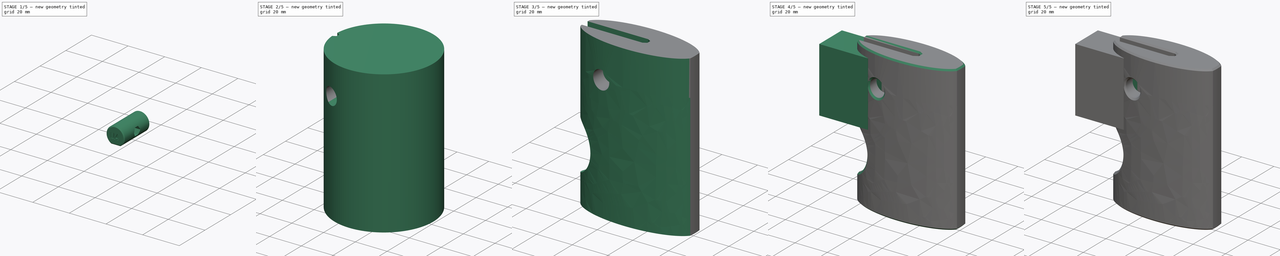
[diagram: build sequence overview — one tinted view per stage of 5, left to right]
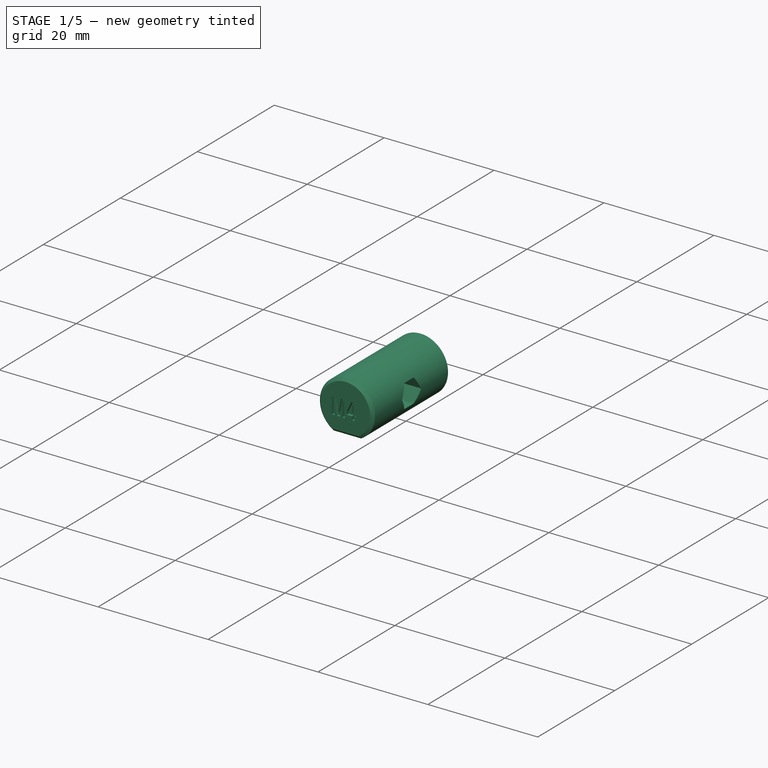
[diagram: stage 1 of 5 — iso view after this stage's code; geometry added in this stage tinted green]
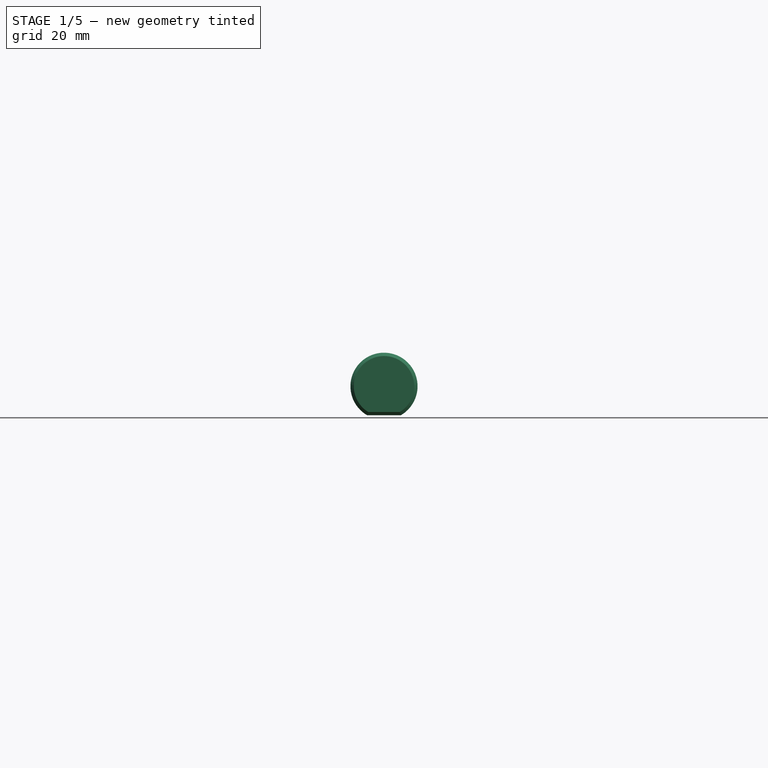
[diagram: stage 1 of 5 — front view after this stage's code; geometry added in this stage tinted green]
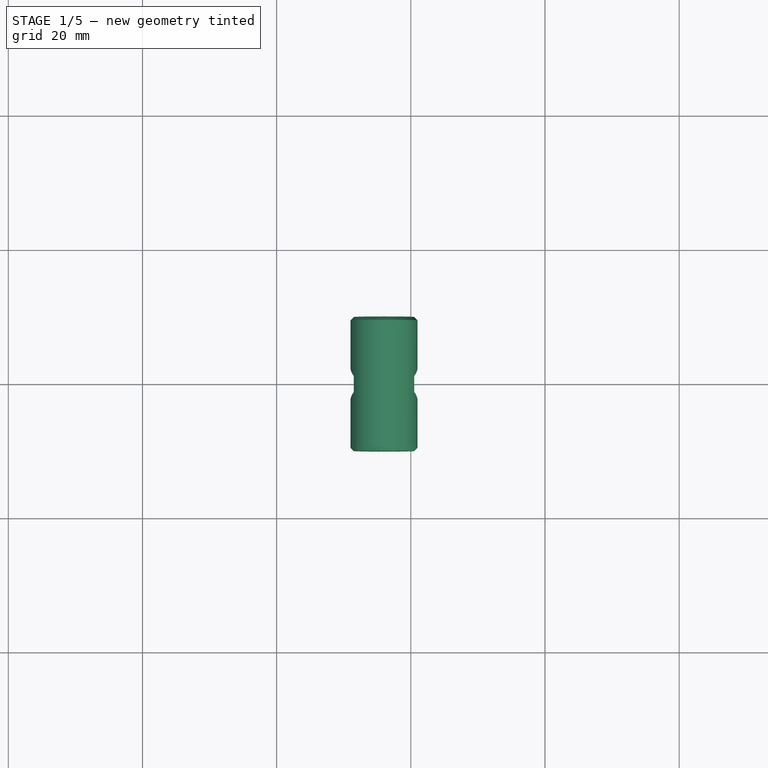
[diagram: stage 1 of 5 — top view after this stage's code; geometry added in this stage tinted green]
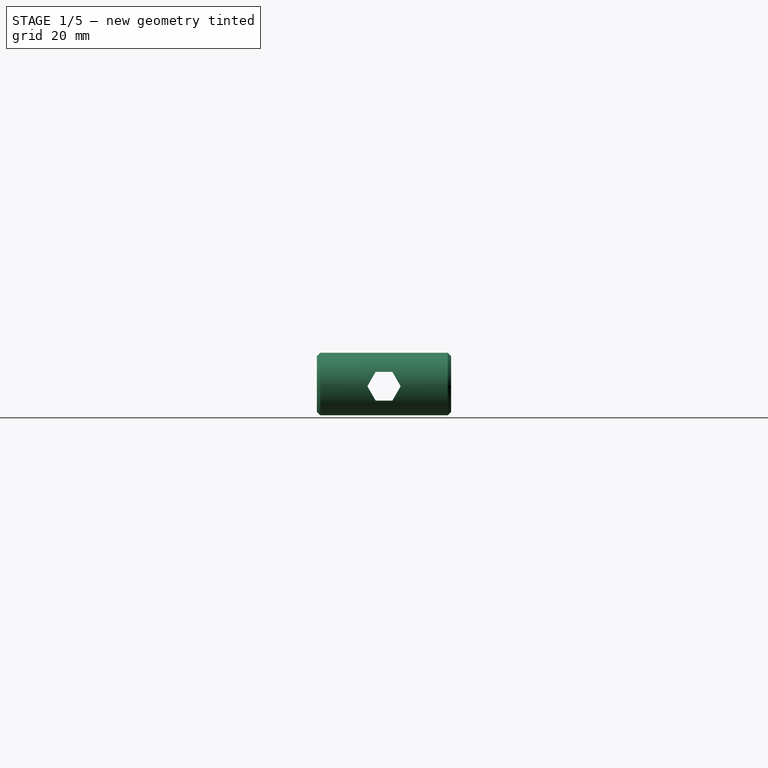
[diagram: stage 1 of 5 — right view after this stage's code; geometry added in this stage tinted green]
FCSTD DOCUMENT  (FreeCAD 1.2R20260113 (Git shallow))
Label: Key Axis protype
License: Creative Commons Attribution-NonCommercial-ShareAlike 4.0
LicenseURL: https://creativecommons.org/licenses/by-nc-sa/4.0/
objects: Sketcher::SketchObject×18, PartDesign::Pocket×10, App::Point×7, PartDesign::Pad×6, PartDesign::Chamfer×6, PartDesign::Body×5, PartDesign::SubShapeBinder×4, PartDesign::Mirrored×2, App::Part×2, PartDesign::SubtractivePipe×1, PartDesign::AdditivePipe×1, Part::Part2DObjectPython×1, Part::DatumPoint×1, Part::DatumLine×1, PartDesign::PolarPattern×1
note: 124 computed .brp shape members not serialized (recipe doc carries the construction recipe); baked Part::Feature solids carry a one-line shape summary decoded from their .brp

FEATURE [PartDesign::Body] Body001  label="Corps"
  AllowCompound = false
  Group = -> [Binder,Sketch004,Pad002,Sketch005,Pocket001]
  Origin = -> Origin002
  Tip = -> Pocket001
FEATURE [App::Part] Part  label="S1"
  Group = -> [Body,Body001]
  Origin = -> Origin004
FEATURE [App::Point] Origin005  label="Origine004"
  Role = Origin
FEATURE [App::Point] Origin007  label="Origine006"
  Role = Origin
FEATURE [App::Point] Origin009  label="Origine008"
  Role = Origin
FEATURE [Sketcher::SketchObject] Sketch006  label="Section001"
  ArcFitTolerance = 1e-06
  AttachmentOffset = pos=(0,0,28) rot=(0,0,1;0rad)
  AttachmentSupport = -> [Origin008]
  ExternalTypes = [0]
  FullyConstrained = true
  MakeInternals = false
  MapMode = 5
  Placement = pos=(28,0,0) rot=(0.57735,0.57735,0.57735;2.0944rad)
  sketch-geometry (7):
    g0: LineSegment StartX=2.3094 StartY=0 StartZ=0 EndX=1.1547 EndY=2 EndZ=0
    g1: LineSegment StartX=1.1547 StartY=2 StartZ=0 EndX=-1.1547 EndY=2 EndZ=0
    g2: LineSegment StartX=-1.1547 StartY=2 StartZ=0 EndX=-2.3094 EndY=0 EndZ=0
    g3: LineSegment StartX=-2.3094 StartY=0 StartZ=0 EndX=-1.1547 EndY=-2 EndZ=0
    g4: LineSegment StartX=-1.1547 StartY=-2 StartZ=0 EndX=1.1547 EndY=-2 EndZ=0
    g5: LineSegment StartX=1.1547 StartY=-2 StartZ=0 EndX=2.3094 EndY=0 EndZ=0
    g6: Circle [constr] CenterX=0 CenterY=0 CenterZ=0 NormalX=0 NormalY=0 NormalZ=1 AngleXU=0 Radius=2.3094
  constraints (16):
    c: Coincident(g0,g1)
    c: Coincident(g1,g2)
    c: Coincident(g2,g3)
    c: Coincident(g3,g4)
    c: Coincident(g4,g5)
    c: Coincident(g5,g0)
    c: Equal(g0, g1-g5) x5
    c: PointOnObject(g0,g6)
    c: PointOnObject(g1,g6)
    c: PointOnObject(g2,g6)
    c: PointOnObject(g3,g6)
    c: PointOnObject(g4,g6)
    c: PointOnObject(g5,g6)
    c: Coincident(g6,g-1)
    c: Horizontal(g4)
    c: Distance(g4,g0) = 4
FEATURE [Sketcher::SketchObject] Sketch007  label="Path001"
  ArcFitTolerance = 1e-06
  AttachmentSupport = -> [Origin008]
  ExternalGeometry = -> [Sketch006]
  ExternalTypes = [0]
  FullyConstrained = true
  MakeInternals = false
  MapMode = 5
  Placement = pos=(0,0,0) rot=(1,0,0;1.5708rad)
  sketch-geometry (3):
    g0: LineSegment StartX=28 StartY=-1 StartZ=0 EndX=4 EndY=-1 EndZ=0
    g1: ArcOfCircle CenterX=4 CenterY=-5 CenterZ=0 NormalX=0 NormalY=0 NormalZ=1 AngleXU=0 Radius=4 StartAngle=1.5708 EndAngle=3.14159
    g2: LineSegment StartX=0 StartY=-5 StartZ=0 EndX=0 EndY=-75 EndZ=0
  constraints (8):
    c: Tangent(g0,g1) = -1.5708
    c: Tangent(g1,g2) = -1.5708
    c: PointOnObject(g2,g-2)
    c: Horizontal(g0)
    c: Symmetric(g-3,g-3,g0)
    c: Vertical(g2)
    c: Radius(g1) = 4
    c: DistanceY(g2,g-1) = 75
FEATURE [PartDesign::AdditivePipe] AdditivePipe
  AuxiliaryCurvilinear = true
  AuxiliarySpineTangent = false
  Binormal = (0,0,0)
  Mode = 0
  Profile = -> Sketch006
  Refine = true
  Spine = -> Sketch007
  SpineTangent = false
  Suppressed = false
  Transformation = 0
  Transition = 0
FEATURE [PartDesign::Body] Body002  label="M4 Key"
  AllowCompound = false
  Group = -> [Sketch006,Sketch007,AdditivePipe]
  Origin = -> Origin008
  Tip = -> AdditivePipe
FEATURE [App::Point] Origin011  label="Origine010"
  Role = Origin
FEATURE [PartDesign::SubShapeBinder] Binder001
  BindCopyOnChange = 0
  BindMode = 0
  ClaimChildren = false
  Context = -> Part001 [Body003.Binder001.]
  Fuse = false
  MakeFace = true
  OffsetFill = false
  OffsetIntersection = false
  OffsetJoinType = 0
  OffsetOpenResult = false
  PartialLoad = false
  Refine = true
  Relative = true
  Support = -> [Body002]
  _Version = 2
FEATURE [Sketcher::SketchObject] Sketch008
  ArcFitTolerance = 1e-06
  AttachmentSupport = -> [Origin010]
  ExternalGeometry = -> [Binder001]
  ExternalTypes = [0,0]
  FullyConstrained = true
  MakeInternals = false
  MapMode = 5
  Placement = pos=(0,0,0) rot=(1,0,0;1.5708rad)
  sketch-geometry (3):
    g0: ArcOfCircle CenterX=16 CenterY=-1e-16 CenterZ=0 NormalX=0 NormalY=0 NormalZ=1 AngleXU=0 Radius=5 StartAngle=5.23599 EndAngle=10.472
    g1: LineSegment StartX=13.5 StartY=-4.33013 StartZ=0 EndX=18.5 EndY=-4.33013 EndZ=0
    g2: LineSegment [constr] StartX=18.5 StartY=-4.33013 StartZ=0 EndX=19.366 EndY=-3.83013 EndZ=0
  constraints (8):
    c: Coincident(g1,g0)
    c: Coincident(g1,g0)
    c: Horizontal(g1)
    c: Tangent(g2,g0) = -1.5708
    c: Distance(g2,g2) = 1
    c: Angle(g-1,g2) = 0.523599
    c: Symmetric(g-3,g-4,g0)
    c: Radius(g0) = 5
FEATURE [PartDesign::Pad] Pad003
  Direction = (0,-1,0)
  Length = 20
  Length2 = 10
  Profile = -> Sketch008
  ReferenceAxis = -> Sketch008 [N_Axis]
  Refine = true
  SideType = 2
  Suppressed = false
  Type = 0
  Type2 = 0
  UseCustomVector = true
FEATURE [Sketcher::SketchObject] Sketch009
  ArcFitTolerance = 1e-06
  AttachmentSupport = -> [Binder001]
  ExternalGeometry = -> [Binder001]
  ExternalTypes = [0,0]
  FullyConstrained = true
  MakeInternals = false
  MapMode = 5
  Placement = pos=(28,0,0) rot=(0.57735,0.57735,0.57735;2.0944rad)
  sketch-geometry (7):
    g0: LineSegment StartX=1.2413 StartY=2.15 StartZ=0 EndX=-1.2413 EndY=2.15 EndZ=0
    g1: LineSegment StartX=-1.2413 StartY=2.15 StartZ=0 EndX=-2.48261 EndY=-6.57e-14 EndZ=0
    g2: LineSegment StartX=-2.48261 StartY=-6.57e-14 StartZ=0 EndX=-1.2413 EndY=-2.15 EndZ=0
    g3: LineSegment StartX=-1.2413 StartY=-2.15 StartZ=0 EndX=1.2413 EndY=-2.15 EndZ=0
    g4: LineSegment StartX=1.2413 StartY=-2.15 StartZ=0 EndX=2.48261 EndY=6.7e-15 EndZ=0
    g5: LineSegment StartX=2.48261 StartY=6.7e-15 StartZ=0 EndX=1.2413 EndY=2.15 EndZ=0
    g6: Circle [constr] CenterX=0 CenterY=0 CenterZ=0 NormalX=0 NormalY=0 NormalZ=1 AngleXU=0 Radius=2.48261
  constraints (16):
    c: Coincident(g0,g1)
    c: Coincident(g1,g2)
    c: Coincident(g2,g3)
    c: Coincident(g3,g4)
    c: Coincident(g4,g5)
    c: Coincident(g5,g0)
    c: Equal(g0, g1-g5) x5
    c: PointOnObject(g0,g6)
    c: PointOnObject(g1,g6)
    c: PointOnObject(g2,g6)
    c: PointOnObject(g3,g6)
    c: PointOnObject(g4,g6)
    c: PointOnObject(g5,g6)
    c: Coincident(g6,g-1)
    c: DistanceY(g-3,g0) = 0.15
    c: Horizontal(g0)
FEATURE [PartDesign::Pocket] Pocket002
  BaseFeature = -> Pad003
  Direction = (-1,0,0)
  Length = 5
  Length2 = 5
  Profile = -> Sketch009
  ReferenceAxis = -> Sketch009 [N_Axis]
  Refine = true
  SideType = 2
  Suppressed = false
  Type = 1
  Type2 = 0
FEATURE [PartDesign::Chamfer] Chamfer001
  Angle = 45
  Base = -> Pocket002 [Face3,Face4]
  BaseFeature = -> Pocket002
  ChamferType = 0
  FlipDirection = false
  Refine = true
  Size = 0.5
  Size2 = 1
  SupportTransform = false
  Suppressed = false
  UseAllEdges = false
FEATURE [Part::Part2DObjectPython] ShapeString  # Draft 2D object (typed FeaturePython)
  AttachmentOffset = pos=(13.5,-1.5,0) rot=(0,0,1;0rad)
  AttachmentSupport = -> [Pad003]
  FontFile = <path>
  Fuse = false
  Justification = 6
  JustificationReference = 0
  KeepLeftMargin = false
  MakeFace = true
  MapMode = 5
  ObliqueAngle = 0
  Placement = pos=(13.5,-10,-1.5) rot=(1,0,0;1.5708rad)
  ScaleToSize = true
  Size = 3
  String = M4
  Tracking = 0
FEATURE [PartDesign::Pocket] Pocket003
  BaseFeature = -> Chamfer001
  Direction = (0,1,-2e-16)
  Length = 0.5
  Length2 = 5
  Profile = -> ShapeString
  ReferenceAxis = -> ShapeString [N_Axis]
  Refine = true
  SideType = 0
  Suppressed = false
  Type = 0
  Type2 = 0
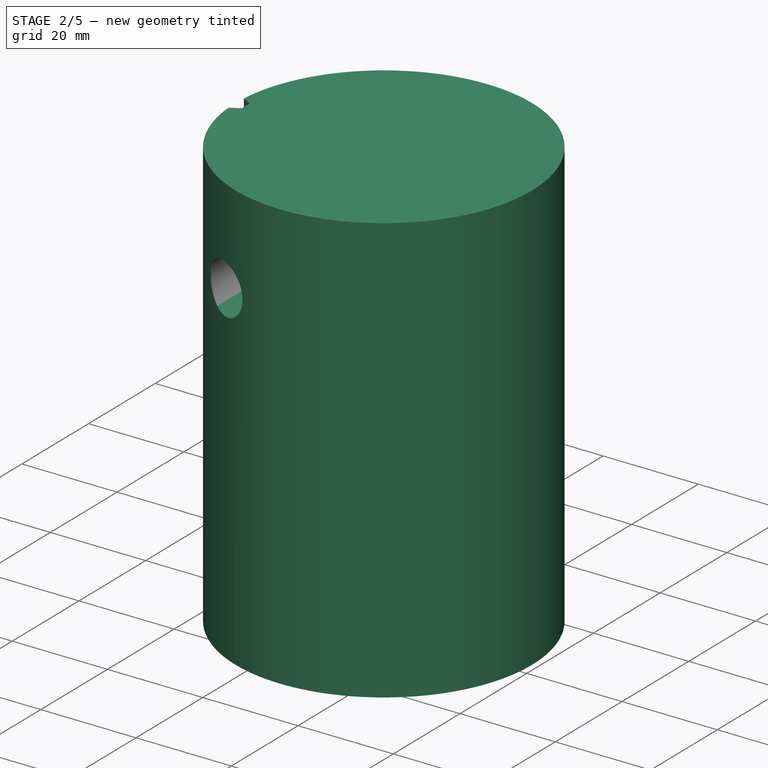
[diagram: stage 2 of 5 — iso view after this stage's code; geometry added in this stage tinted green]
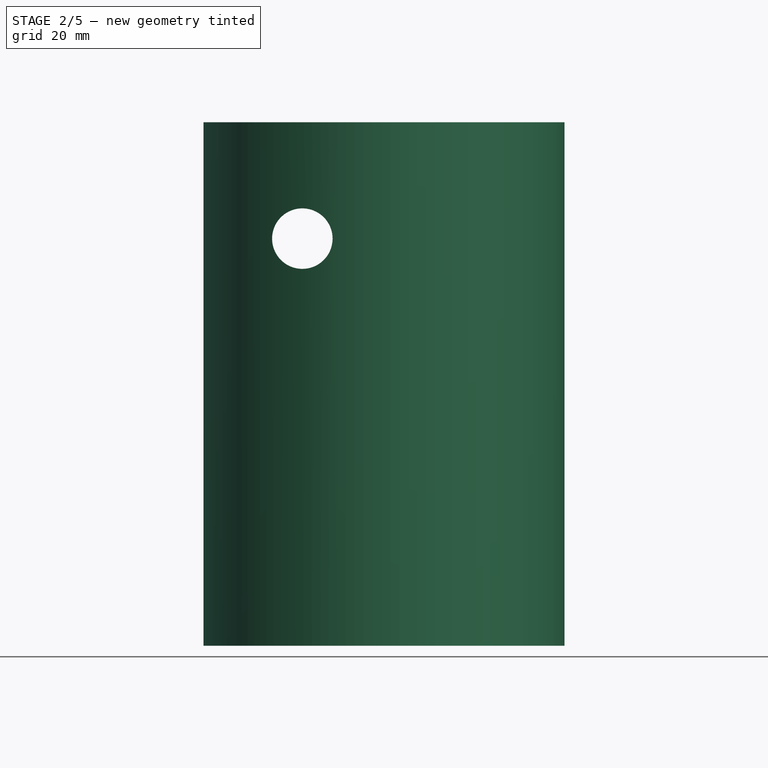
[diagram: stage 2 of 5 — front view after this stage's code; geometry added in this stage tinted green]
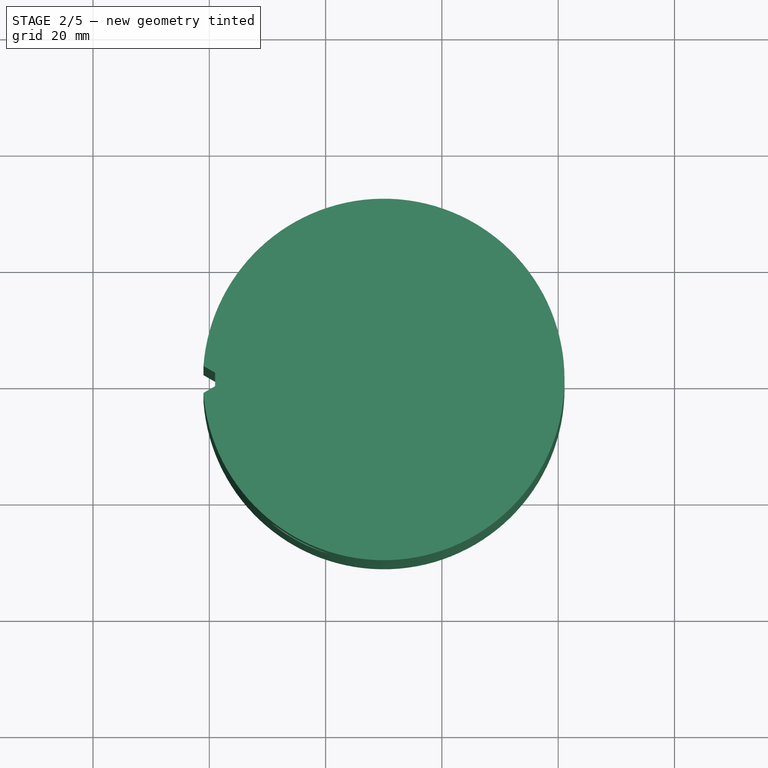
[diagram: stage 2 of 5 — top view after this stage's code; geometry added in this stage tinted green]
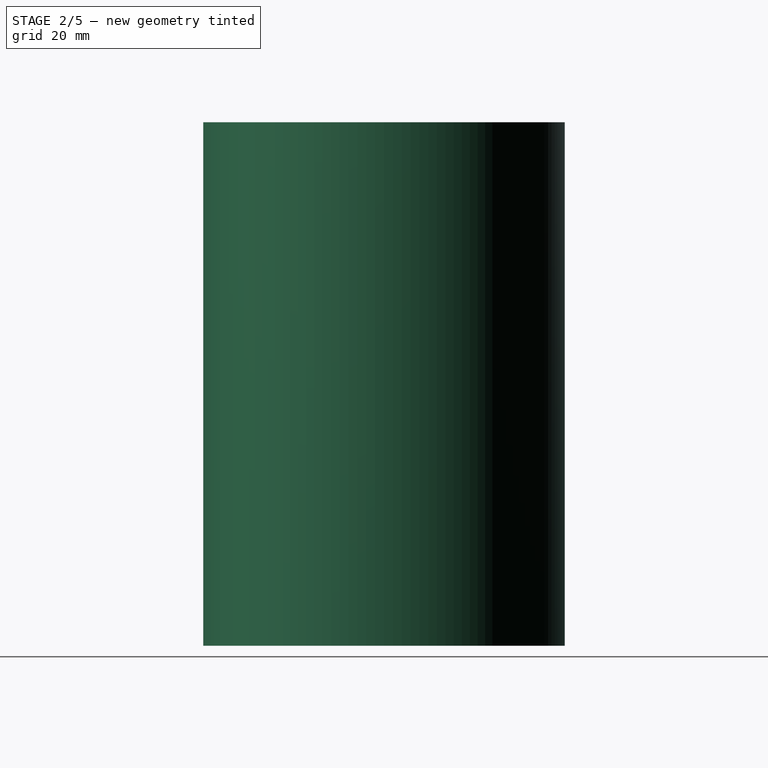
[diagram: stage 2 of 5 — right view after this stage's code; geometry added in this stage tinted green]
FEATURE [App::Point] Origin013  label="Origine012"
  Role = Origin
FEATURE [PartDesign::SubShapeBinder] Binder002
  BindCopyOnChange = 0
  BindMode = 0
  ClaimChildren = false
  Context = -> Part001 [Body004.Binder002.]
  Fuse = false
  MakeFace = true
  OffsetFill = false
  OffsetIntersection = false
  OffsetJoinType = 0
  OffsetOpenResult = false
  PartialLoad = false
  Refine = true
  Relative = true
  Support = -> [Body003]
  _Version = 2
FEATURE [PartDesign::SubShapeBinder] Binder003
  BindCopyOnChange = 0
  BindMode = 0
  ClaimChildren = false
  Context = -> Part001 [Body004.Binder003.]
  Fuse = false
  MakeFace = true
  OffsetFill = false
  OffsetIntersection = false
  OffsetJoinType = 0
  OffsetOpenResult = false
  PartialLoad = false
  Refine = true
  Relative = true
  Support = -> [Body002]
  _Version = 2
FEATURE [Sketcher::SketchObject] Sketch010
  ArcFitTolerance = 1e-06
  AttachmentSupport = -> [Origin012]
  ExternalGeometry = -> [Binder003,Binder002]
  ExternalTypes = [0,0,0]
  FullyConstrained = true
  MakeInternals = false
  MapMode = 5
  Placement = pos=(0,0,0) rot=(1,0,0;1.5708rad)
  sketch-geometry (1):
    g0: LineSegment StartX=30 StartY=5 StartZ=0 EndX=30 EndY=-5 EndZ=0
  constraints (3):
    c: Distance(g0,g0) = 10
    c: Symmetric(g0,g0,g-1)
    c: DistanceX(g-4,g0) = 2
FEATURE [Sketcher::SketchObject] Sketch011
  ArcFitTolerance = 1e-06
  AttachmentSupport = -> [Origin012]
  ExternalGeometry = -> [Sketch010,Binder003]
  ExternalTypes = [0,0]
  FullyConstrained = true
  MakeInternals = false
  MapMode = 5
  sketch-geometry (1):
    g0: Circle CenterX=30 CenterY=-1.1e-15 CenterZ=0 NormalX=0 NormalY=0 NormalZ=1 AngleXU=0 Radius=31.0859
  constraints (2):
    c: Coincident(g-3,g0)
    c: PointOnObject(g-4,g0)
FEATURE [PartDesign::Pad] Pad004
  Direction = (0,0,1)
  Length = 20
  Length2 = 10
  Profile = -> Sketch011 [Edge1]
  ReferenceAxis = -> Sketch011 [N_Axis]
  Refine = true
  SideType = 0
  Suppressed = false
  Type = 0
  Type2 = 0
FEATURE [PartDesign::Pad] Pad005
  BaseFeature = -> Pad004
  Direction = (0,0,-1)
  Length = 70
  Length2 = 10
  Profile = -> Pad004 [Face2]
  Refine = true
  SideType = 0
  Suppressed = false
  Type = 0
  Type2 = 0
FEATURE [Sketcher::SketchObject] Sketch012
  ArcFitTolerance = 1e-06
  AttachmentSupport = -> [Origin012]
  ExternalGeometry = -> [Binder003]
  ExternalTypes = [0,0]
  FullyConstrained = true
  MakeInternals = false
  MapMode = 5
FEATURE [PartDesign::Pocket] Pocket004
  BaseFeature = -> Pad005
  Direction = (0,0,-1)
  Length = 5
  Length2 = 5
  Profile = -> Sketch012
  ReferenceAxis = -> Sketch012 [N_Axis]
  Refine = true
  SideType = 2
  Suppressed = false
  Type = 1
  Type2 = 0
FEATURE [Sketcher::SketchObject] Sketch013
  ArcFitTolerance = 1e-06
  AttachmentSupport = -> [Origin012]
  ExternalGeometry = -> [Binder002]
  ExternalTypes = [0]
  FullyConstrained = true
  MakeInternals = false
  MapMode = 5
  Placement = pos=(0,0,0) rot=(1,0,0;1.5708rad)
  sketch-geometry (1):
    g0: Circle CenterX=16 CenterY=2e-15 CenterZ=0 NormalX=0 NormalY=0 NormalZ=1 AngleXU=0 Radius=5.2
  constraints (2):
    c: Coincident(g0,g-3)
    c: Distance(g-3,g0) = 0.2
FEATURE [PartDesign::Pocket] Pocket005
  BaseFeature = -> Pocket004
  Direction = (0,1,-2e-16)
  Length = 5
  Length2 = 5
  Profile = -> Sketch013
  ReferenceAxis = -> Sketch013 [N_Axis]
  Refine = true
  SideType = 2
  Suppressed = false
  Type = 1
  Type2 = 0
FEATURE [PartDesign::Body] Body004  label="Poignée"
  AllowCompound = false
  Group = -> [Binder002,Binder003,Sketch010,Sketch011,Pad004,Pad005,Sketch012,Pocket004,Sketch013,Pocket005,Sketch014,Pocket006,Sketch015,Pocket007,Mirrored001,Sketch016,Pocket008,DatumPoint,Sketch018,Pocket009,Chamfer007,Chamfer008,Chamfer009]
  Origin = -> Origin012
  Tip = -> Chamfer009
FEATURE [PartDesign::Chamfer] Chamfer010
  Angle = 45
  Base = -> Pocket003 [Edge11,Edge12,Edge13,Edge14,Edge15,Edge16,Edge5,Edge10,Edge9,Edge8,Edge7,Edge6]
  BaseFeature = -> Pocket003
  ChamferType = 0
  FlipDirection = false
  Refine = true
  Size = 1
  Size2 = 1
  SupportTransform = false
  Suppressed = false
  UseAllEdges = false
FEATURE [Part::DatumLine] DatumLine
  AttacherType = Attacher::AttachEngineLine
  AttachmentSupport = -> [Chamfer010]
  MapMode = 42
  Placement = pos=(16,-9.53905e-08,0) rot=(0,0,1;0rad)
FEATURE [PartDesign::PolarPattern] PolarPattern
  Angle = 360
  Axis = -> DatumLine
  BaseFeature = -> Chamfer010
  Mode = 0
  Occurrences = 2
  Offset = 120
  Originals = -> [Pocket003]
  Refine = true
  SpacingPattern = [0]
  Spacings = [-1]
  Suppressed = false
  TransformMode = 0
FEATURE [PartDesign::Body] Body003  label="Axis"
  AllowCompound = false
  Group = -> [Binder001,Sketch008,Pad003,Sketch009,Pocket002,Chamfer001,ShapeString,Pocket003,Chamfer010,DatumLine,PolarPattern]
  Origin = -> Origin010
  Tip = -> PolarPattern
FEATURE [App::Part] Part001  label="S2"
  Group = -> [Body002,Body003,Body004]
  Origin = -> Origin006
note: 1 file-system path scrubbed to <path> (originals preserved in the JSON sidecar)
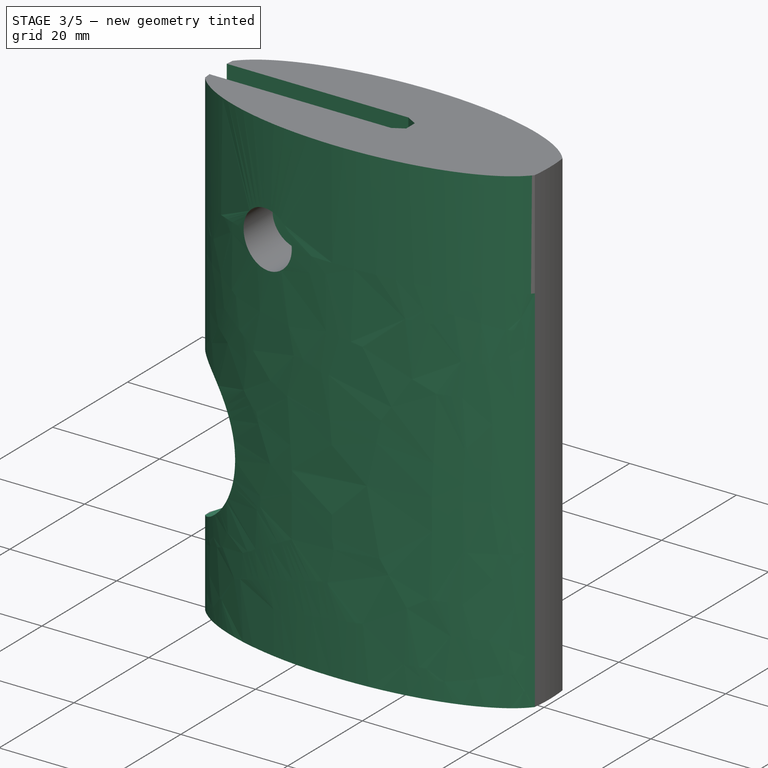
[diagram: stage 3 of 5 — iso view after this stage's code; geometry added in this stage tinted green]
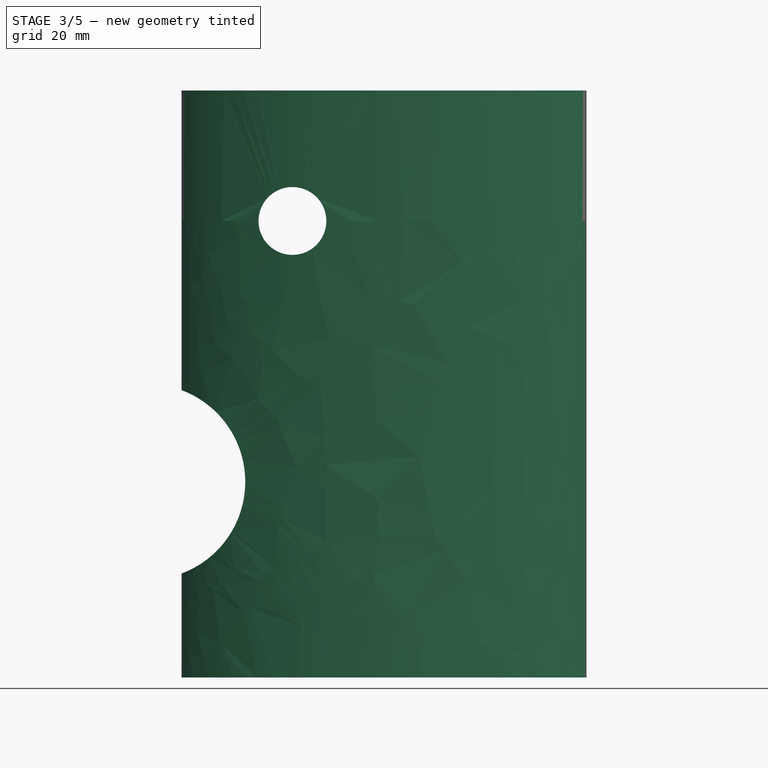
[diagram: stage 3 of 5 — front view after this stage's code; geometry added in this stage tinted green]
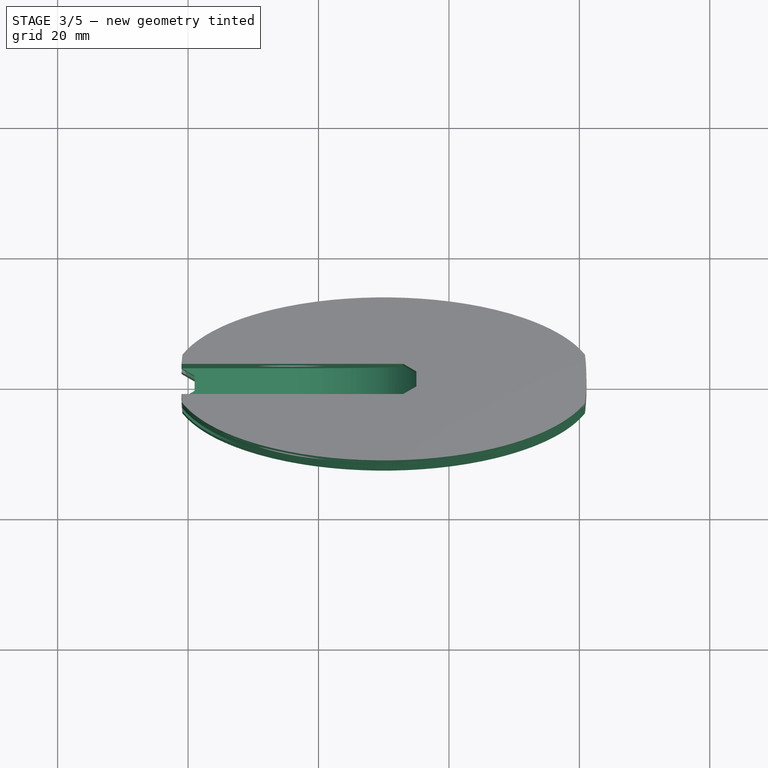
[diagram: stage 3 of 5 — top view after this stage's code; geometry added in this stage tinted green]
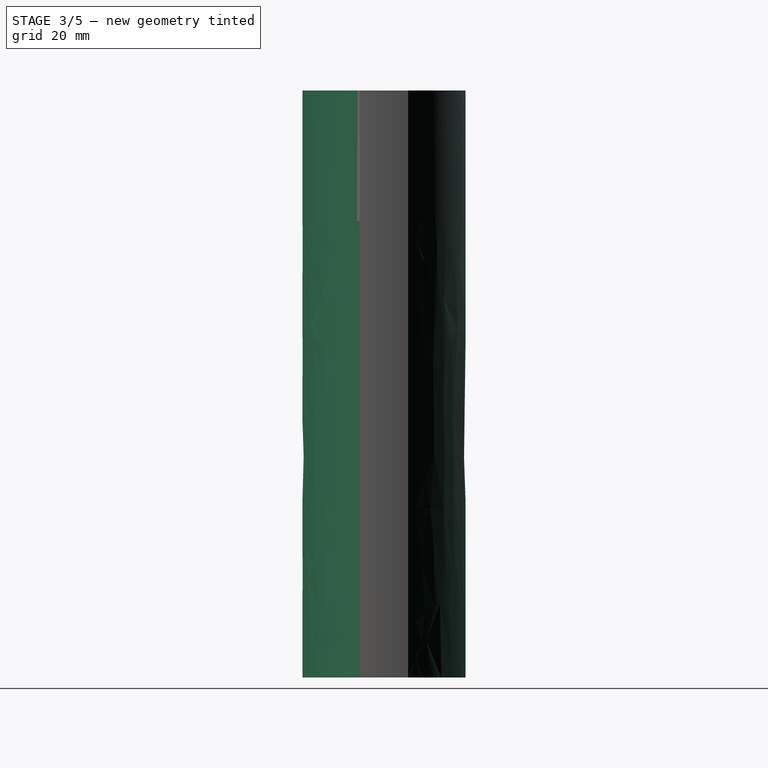
[diagram: stage 3 of 5 — right view after this stage's code; geometry added in this stage tinted green]
FEATURE [Sketcher::SketchObject] Sketch014
  ArcFitTolerance = 1e-06
  AttachmentSupport = -> [Pocket005]
  ExternalGeometry = -> [Binder002,Sketch012]
  ExternalTypes = [0,0,0]
  FullyConstrained = true
  MakeInternals = false
  MapMode = 5
  Placement = pos=(0,0,20) rot=(0,0,1;0rad)
  sketch-geometry (9):
    g0: LineSegment [constr] StartX=16 StartY=9.5 StartZ=0 EndX=16 EndY=0 EndZ=0
    g1: LineSegment StartX=-1 StartY=2.3094 StartZ=0 EndX=33 EndY=2.3094 EndZ=0
    g2: LineSegment StartX=33 StartY=2.3094 StartZ=0 EndX=35 EndY=1.1547 EndZ=0
    g3: LineSegment StartX=35 StartY=1.1547 StartZ=0 EndX=35 EndY=-1.1547 EndZ=0
    g4: LineSegment StartX=35 StartY=-1.1547 StartZ=0 EndX=33 EndY=-2.3094 EndZ=0
    g5: LineSegment StartX=33 StartY=-2.3094 StartZ=0 EndX=-1 EndY=-2.3094 EndZ=0
    g6: LineSegment StartX=-1 StartY=2.3094 StartZ=0 EndX=-3 EndY=1.1547 EndZ=0
    g7: LineSegment StartX=-3 StartY=1.1547 StartZ=0 EndX=-3 EndY=-1.1547 EndZ=0
    g8: LineSegment StartX=-3 StartY=-1.1547 StartZ=0 EndX=-1 EndY=-2.3094 EndZ=0
  constraints (19):
    c: Symmetric(g-3,g-3,g0)
    c: PointOnObject(g0,g-1)
    c: Vertical(g0)
    c: Coincident(g-4,g1)
    c: Coincident(g1,g2)
    c: Coincident(g2,g3)
    c: Coincident(g3,g4)
    c: Coincident(g4,g5)
    c: Coincident(g5,g-5)
    c: Coincident(g1,g6)
    c: Coincident(g6,g-4)
    c: Coincident(g6,g7)
    c: Coincident(g7,g-5)
    c: Coincident(g7,g8)
    c: Coincident(g8,g5)
    c: Symmetric(g4,g5,g0)
    c: Symmetric(g7,g3,g0)
    c: Symmetric(g1,g1,g0)
    c: Symmetric(g6,g2,g0)
FEATURE [PartDesign::Pocket] Pocket006
  BaseFeature = -> Pocket005
  Direction = (0,0,-1)
  Length = 17
  Length2 = 5
  Profile = -> Sketch014
  ReferenceAxis = -> Sketch014 [N_Axis]
  Refine = true
  SideType = 0
  Suppressed = false
  Type = 0
  Type2 = 0
FEATURE [Sketcher::SketchObject] Sketch015
  ArcFitTolerance = 1e-06
  AttachmentSupport = -> [Origin012]
  ExternalGeometry = -> [Pocket006]
  ExternalTypes = [0,0,1]
  FullyConstrained = true
  MakeInternals = false
  MapMode = 5
  Placement = pos=(0,0,0) rot=(1,0,0;1.5708rad)
  sketch-geometry (5):
    g0: ArcOfCircle CenterX=16 CenterY=2e-15 CenterZ=0 NormalX=0 NormalY=0 NormalZ=1 AngleXU=0 Radius=19 StartAngle=4.71239 EndAngle=6.28319
    g1: LineSegment StartX=16 StartY=-19 StartZ=0 EndX=-1 EndY=-19 EndZ=0
    g2: LineSegment StartX=-1 StartY=-19 StartZ=0 EndX=-1 EndY=3 EndZ=0
    g3: LineSegment StartX=-1 StartY=3 StartZ=0 EndX=35 EndY=3 EndZ=0
    g4: LineSegment StartX=35 StartY=3 StartZ=0 EndX=35 EndY=-4e-16 EndZ=0
  constraints (11):
    c: Tangent(g0,g1) = 1.5708
    c: Coincident(g1,g2)
    c: Vertical(g2)
    c: Coincident(g2,g3)
    c: Coincident(g3,g4)
    c: Horizontal(g1)
    c: Tangent(g4,g0) = 1.5708
    c: Coincident(g3,g-3)
    c: Coincident(g-4,g2)
    c: Coincident(g0,g-5)
    c: Vertical(g4)
FEATURE [PartDesign::Pocket] Pocket007
  BaseFeature = -> Pocket006
  Direction = (0,1,0)
  Length = 0
  Length2 = 5
  Profile = -> Sketch015
  ReferenceAxis = -> Sketch015 [N_Axis]
  Refine = true
  SideType = 0
  Suppressed = false
  Type = 3
  Type2 = 0
  UpToFace = -> Pocket006 [Face8]
FEATURE [PartDesign::Mirrored] Mirrored001
  BaseFeature = -> Pocket007
  MirrorPlane = -> XZ_Plane006
  Originals = -> [Pocket007]
  Refine = true
  Suppressed = false
  TransformMode = 0
FEATURE [Sketcher::SketchObject] Sketch016
  ArcFitTolerance = 1e-06
  AttachmentSupport = -> [Origin012]
  ExternalTypes = [0]
  FullyConstrained = true
  MakeInternals = false
  MapMode = 5
  Placement = pos=(0,0,0) rot=(1,0,0;1.5708rad)
  sketch-geometry (2):
    g0: ArcOfCircle CenterX=-6.23441 CenterY=-40 CenterZ=0 NormalX=0 NormalY=0 NormalZ=1 AngleXU=0 Radius=15 StartAngle=4.98232 EndAngle=7.58405
    g1: LineSegment StartX=-2.23441 StartY=-25.5432 StartZ=0 EndX=-2.23441 EndY=-54.4568 EndZ=0
  constraints (7):
    c: PointOnObject(g0,g-3)
    c: PointOnObject(g0,g-3)
    c: Coincident(g1,g0)
    c: Coincident(g1,g0)
    c: Radius(g0) = 15
    c: Distance(g0,g-1) = 40
    c: DistanceX(g0,g0) = 4
FEATURE [PartDesign::Pocket] Pocket008
  BaseFeature = -> Mirrored001
  Direction = (0,1,-2e-16)
  Length = 5
  Length2 = 5
  Profile = -> Sketch016
  ReferenceAxis = -> Sketch016 [N_Axis]
  Refine = true
  SideType = 2
  Suppressed = false
  Type = 1
  Type2 = 0
FEATURE [Part::DatumPoint] DatumPoint
  AttacherType = Attacher::AttachEnginePoint
FEATURE [Sketcher::SketchObject] Sketch018
  ArcFitTolerance = 1e-06
  AttachmentSupport = -> [Origin012]
  ExternalTypes = [0]
  FullyConstrained = true
  MakeInternals = false
  MapMode = 5
  sketch-geometry (10):
    g0: Ellipse CenterX=30 CenterY=0 CenterZ=0 NormalX=0 NormalY=0 NormalZ=1 MajorRadius=32.3094 MinorRadius=12.5 AngleXU=0
    g1: LineSegment [constr] StartX=62.3094 StartY=-1.1e-15 StartZ=0 EndX=-2.3094 EndY=-1.1e-15 EndZ=0
    g2: LineSegment [constr] StartX=30 StartY=12.5 StartZ=0 EndX=30 EndY=-12.5 EndZ=0
    g3: GeomPoint [constr] X=59.7934 Y=-1.1e-15 Z=0
    g4: GeomPoint [constr] X=0.206588 Y=-1.1e-15 Z=0
    g5: LineSegment StartX=-20 StartY=-50 StartZ=0 EndX=80 EndY=-50 EndZ=0
    g6: LineSegment StartX=80 StartY=-50 StartZ=0 EndX=80 EndY=50 EndZ=0
    g7: LineSegment StartX=80 StartY=50 StartZ=0 EndX=-20 EndY=50 EndZ=0
    g8: LineSegment StartX=-20 StartY=50 StartZ=0 EndX=-20 EndY=-50 EndZ=0
    g9: GeomPoint [constr] X=30 Y=0 Z=0
  constraints (16):
    c: InternalAlignment(g1-g4 -> g0) x4
    c: Coincident(g0,g-3)
    c: Distance(g2,g2) = 25
    c: Coincident(g1,g-3)
    c: Coincident(g5,g6)
    c: Coincident(g6,g7)
    c: Coincident(g7,g8)
    c: Coincident(g8,g5)
    c: Horizontal(g5)
    c: Horizontal(g7)
    c: Vertical(g6)
    c: Vertical(g8)
    c: Symmetric(g7,g5,g9)
    c: Distance(g6,g8) = 100
    c: Distance(g5,g7) = 100
    c: Coincident(g9,g0)
FEATURE [PartDesign::Pocket] Pocket009
  BaseFeature = -> Pocket008
  Direction = (0,0,-1)
  Length = 5
  Length2 = 5
  Profile = -> Sketch018
  ReferenceAxis = -> Sketch018 [N_Axis]
  Refine = true
  SideType = 2
  Suppressed = false
  Type = 1
  Type2 = 0
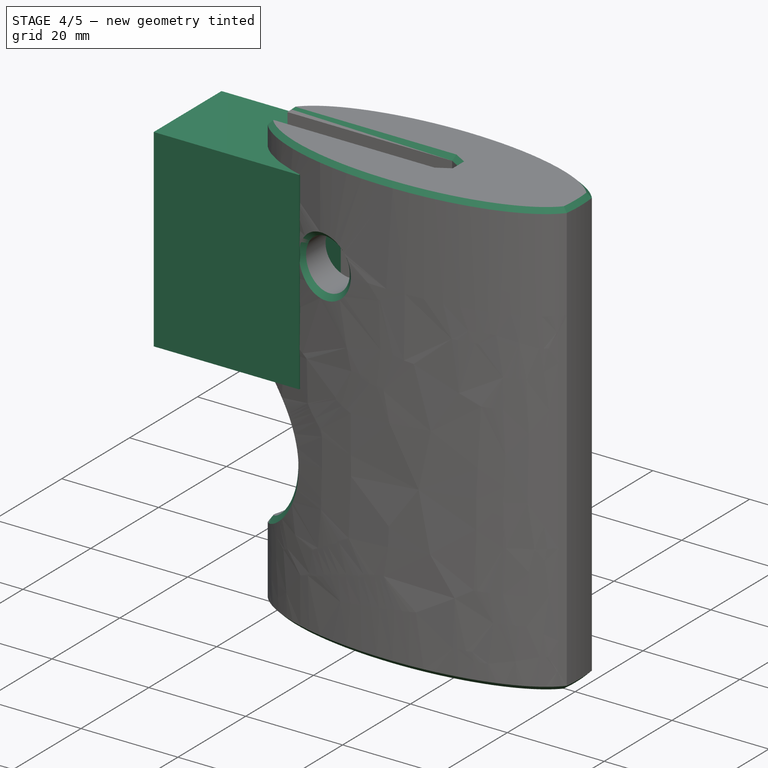
[diagram: stage 4 of 5 — iso view after this stage's code; geometry added in this stage tinted green]
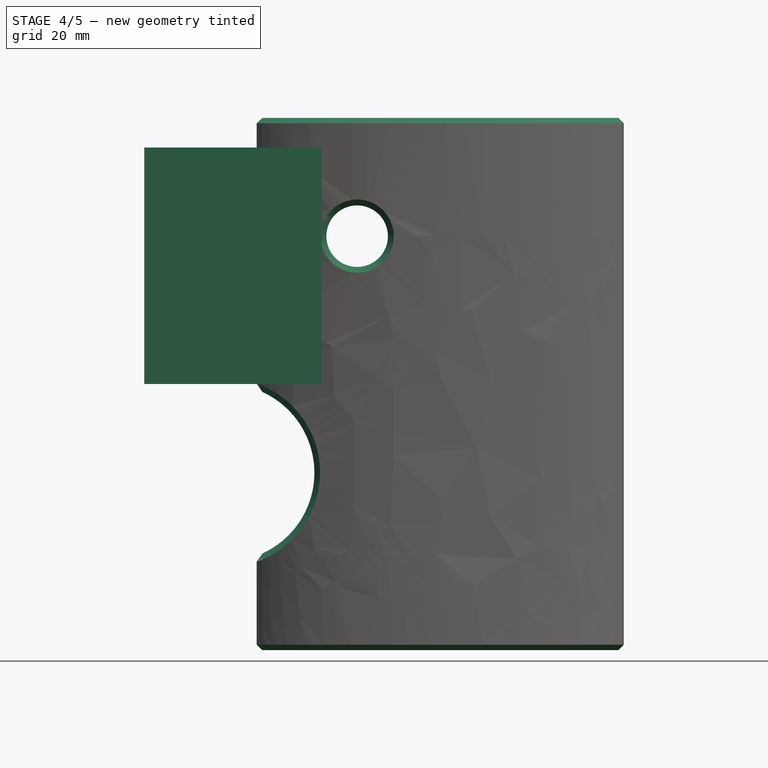
[diagram: stage 4 of 5 — front view after this stage's code; geometry added in this stage tinted green]
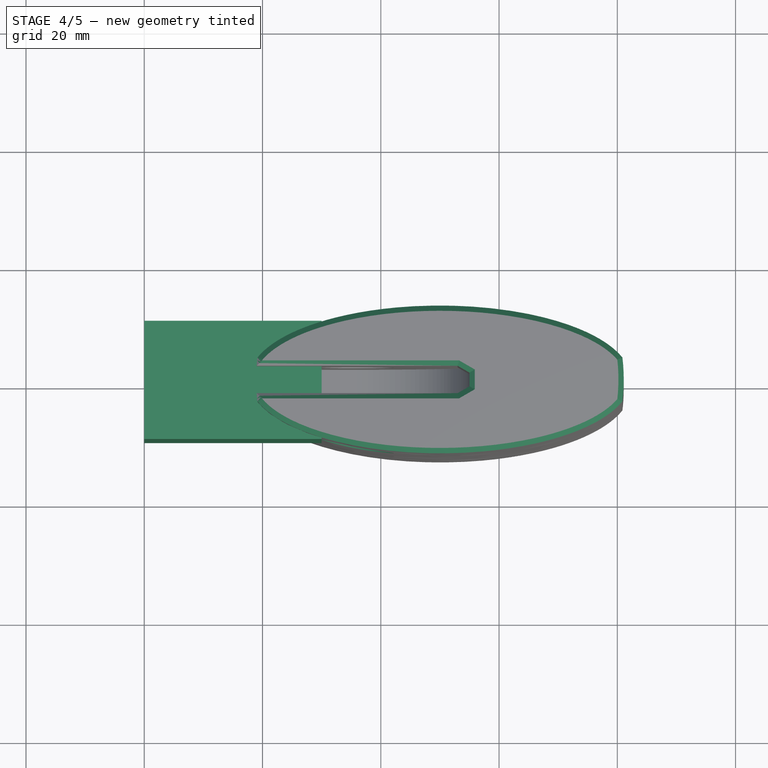
[diagram: stage 4 of 5 — top view after this stage's code; geometry added in this stage tinted green]
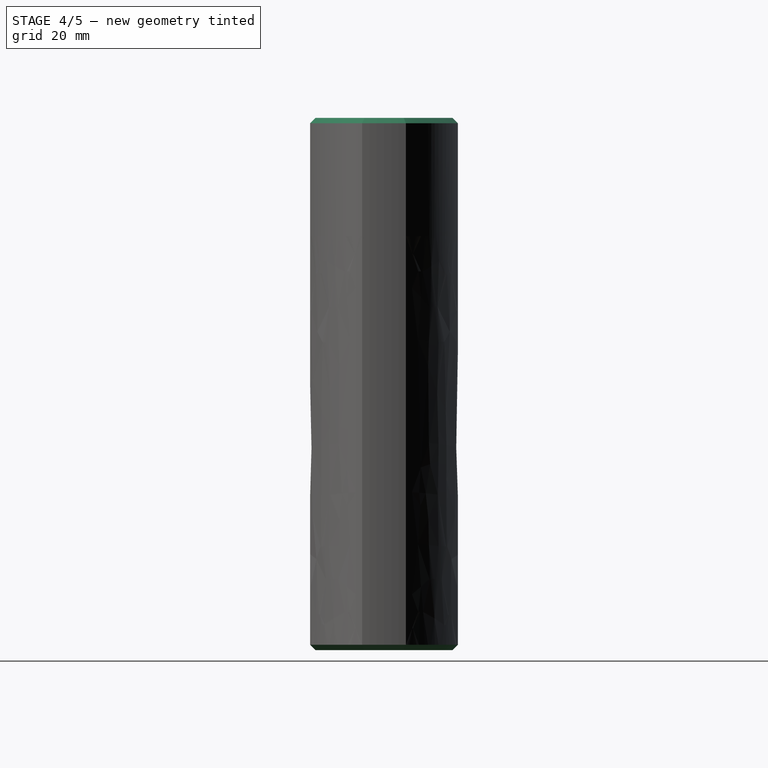
[diagram: stage 4 of 5 — right view after this stage's code; geometry added in this stage tinted green]
FEATURE [App::Point] Origin001  label="Origine"
  Role = Origin
FEATURE [Sketcher::SketchObject] Sketch
  ArcFitTolerance = 1e-06
  AttachmentSupport = -> [Origin]
  ExternalTypes = [0]
  FullyConstrained = true
  MakeInternals = false
  MapMode = 5
  Placement = pos=(0,0,0) rot=(1,0,0;1.5708rad)
  sketch-geometry (4):
    g0: ArcOfCircle CenterX=0 CenterY=0 CenterZ=0 NormalX=0 NormalY=0 NormalZ=1 AngleXU=0 Radius=4.5 StartAngle=2.41186 EndAngle=3.87132
    g1: LineSegment StartX=-3.3541 StartY=3 StartZ=0 EndX=3.3541 EndY=3 EndZ=0
    g2: LineSegment StartX=-3.3541 StartY=-3 StartZ=0 EndX=3.3541 EndY=-3 EndZ=0
    g3: ArcOfCircle CenterX=0 CenterY=0 CenterZ=0 NormalX=0 NormalY=0 NormalZ=1 AngleXU=0 Radius=4.5 StartAngle=5.55346 EndAngle=7.01291
  constraints (12):
    c: Coincident(g0,g-1)
    c: Horizontal(g1)
    c: Horizontal(g2)
    c: Vertical(g2,g1)
    c: Distance(g2,g1) = 6
    c: Coincident(g1,g0)
    c: Coincident(g1,g3)
    c: Diameter(g0) = 9
    c: Coincident(g2,g0)
    c: Coincident(g2,g3)
    c: Coincident(g0,g3)
    c: Equal(g0,g3)
FEATURE [PartDesign::Pad] Pad
  Direction = (0,-1,2e-16)
  Length = 6
  Length2 = 10
  Profile = -> Sketch
  ReferenceAxis = -> Sketch [N_Axis]
  Refine = true
  SideType = 2
  Suppressed = false
  Type = 0
  Type2 = 0
FEATURE [Sketcher::SketchObject] Sketch001  label="Section"
  ArcFitTolerance = 1e-06
  AttachmentOffset = pos=(0,0,10) rot=(0,0,1;0rad)
  AttachmentSupport = -> [YZ_Plane]
  ExternalGeometry = -> [Pad]
  ExternalTypes = [0]
  FullyConstrained = true
  MakeInternals = false
  MapMode = 5
  Placement = pos=(10,0,0) rot=(0.57735,0.57735,0.57735;2.0944rad)
  sketch-geometry (8):
    g0: LineSegment StartX=0 StartY=3.86603 StartZ=0 EndX=-2 EndY=2.71132 EndZ=0
    g1: LineSegment StartX=-2 StartY=2.71132 StartZ=0 EndX=-2 EndY=0.401924 EndZ=0
    g2: LineSegment StartX=-2 StartY=0.401924 StartZ=0 EndX=4e-16 EndY=-0.752777 EndZ=0
    g3: LineSegment StartX=4e-16 StartY=-0.752777 StartZ=0 EndX=2 EndY=0.401924 EndZ=0
    g4: LineSegment StartX=2 StartY=0.401924 StartZ=0 EndX=2 EndY=2.71132 EndZ=0
    g5: LineSegment StartX=2 StartY=2.71132 StartZ=0 EndX=0 EndY=3.86603 EndZ=0
    g6: Circle [constr] CenterX=3e-16 CenterY=1.55662 CenterZ=0 NormalX=0 NormalY=0 NormalZ=1 AngleXU=0 Radius=2.3094
    g7: GeomPoint [constr] X=1.5 Y=3 Z=0
  constraints (19):
    c: Coincident(g0,g1)
    c: Coincident(g1,g2)
    c: Coincident(g2,g3)
    c: Coincident(g3,g4)
    c: Coincident(g4,g5)
    c: Coincident(g5,g0)
    c: Equal(g0, g1-g5) x5
    c: PointOnObject(g0,g6)
    c: PointOnObject(g1,g6)
    c: PointOnObject(g2,g6)
    c: PointOnObject(g3,g6)
    c: PointOnObject(g4,g6)
    c: PointOnObject(g5,g6)
    c: PointOnObject(g5,g-2)
    c: Distance(g1,g3) = 4
    c: Vertical(g1)
    c: PointOnObject(g7,g5)
    c: PointOnObject(g7,g-3)
    c: DistanceX(g7,g4) = 0.5
FEATURE [Sketcher::SketchObject] Sketch002  label="Path"
  ArcFitTolerance = 1e-06
  AttachmentSupport = -> [XZ_Plane]
  ExternalGeometry = -> [Sketch001,Pad]
  ExternalTypes = [0,0]
  FullyConstrained = false
  MakeInternals = false
  MapMode = 5
  Placement = pos=(0,0,0) rot=(1,0,0;1.5708rad)
  sketch-geometry (3):
    g0: LineSegment StartX=0 StartY=-5.0339 StartZ=0 EndX=0 EndY=-0.443376 EndZ=0
    g1: LineSegment StartX=2 StartY=1.55662 StartZ=0 EndX=10 EndY=1.55662 EndZ=0
    g2: ArcOfCircle CenterX=2 CenterY=-0.443376 CenterZ=0 NormalX=0 NormalY=0 NormalZ=1 AngleXU=0 Radius=2 StartAngle=1.5708 EndAngle=3.14159
  constraints (6):
    c: PointOnObject(g0,g-2)
    c: Symmetric(g-3,g-3,g1)
    c: Radius(g2) = 2
    c: Horizontal(g1)
    c: Tangent(g2,g1) = 1.5708
    c: Tangent(g2,g0) = 1.5708
FEATURE [PartDesign::SubtractivePipe] SubtractivePipe
  AuxiliaryCurvilinear = true
  AuxiliarySpineTangent = false
  BaseFeature = -> Pad
  Binormal = (0,0,0)
  Mode = 0
  Profile = -> Sketch001
  Refine = true
  Spine = -> Sketch002
  SpineTangent = false
  Suppressed = false
  Transformation = 0
  Transition = 0
FEATURE [PartDesign::Body] Body
  AllowCompound = false
  Group = -> [Sketch,Pad,Sketch001,Sketch002,SubtractivePipe,Pocket,Chamfer,Sketch003,Pad001,Mirrored]
  Origin = -> Origin
  Tip = -> Mirrored
FEATURE [App::Point] Origin003  label="Origine002"
  Role = Origin
FEATURE [PartDesign::SubShapeBinder] Binder
  BindCopyOnChange = 0
  BindMode = 0
  ClaimChildren = false
  Context = -> Part [Body001.Binder.]
  Fuse = false
  MakeFace = true
  OffsetFill = false
  OffsetIntersection = false
  OffsetJoinType = 0
  OffsetOpenResult = false
  PartialLoad = false
  Refine = true
  Relative = true
  Support = -> [Body]
  _Version = 2
FEATURE [Sketcher::SketchObject] Sketch004
  ArcFitTolerance = 1e-06
  AttachmentSupport = -> [Origin002]
  ExternalTypes = [0]
  FullyConstrained = true
  MakeInternals = false
  MapMode = 5
  Placement = pos=(0,0,0) rot=(1,0,0;1.5708rad)
  sketch-geometry (4):
    g0: LineSegment StartX=-20 StartY=15 StartZ=0 EndX=-20 EndY=-25 EndZ=0
    g1: LineSegment StartX=-20 StartY=-25 StartZ=0 EndX=10 EndY=-25 EndZ=0
    g2: LineSegment StartX=10 StartY=-25 StartZ=0 EndX=10 EndY=15 EndZ=0
    g3: LineSegment StartX=10 StartY=15 StartZ=0 EndX=-20 EndY=15 EndZ=0
  constraints (12):
    c: Coincident(g0,g1)
    c: Coincident(g1,g2)
    c: Coincident(g2,g3)
    c: Coincident(g3,g0)
    c: Vertical(g0)
    c: Vertical(g2)
    c: Horizontal(g1)
    c: Horizontal(g3)
    c: Distance(g0,g2) = 30
    c: Distance(g1,g3) = 40
    c: Distance(g0,g-1) = 15
    c: Distance(g1,g-2) = 10
FEATURE [PartDesign::Pad] Pad002
  Direction = (0,-1,2e-16)
  Length = 20
  Length2 = 10
  Profile = -> Sketch004
  ReferenceAxis = -> Sketch004 [N_Axis]
  Refine = true
  SideType = 2
  Suppressed = false
  Type = 0
  Type2 = 0
FEATURE [PartDesign::Chamfer] Chamfer007
  Angle = 45
  Base = -> Pocket009 [Face14,Face1]
  BaseFeature = -> Pocket009
  ChamferType = 0
  FlipDirection = false
  Refine = true
  Size = 0.9
  Size2 = 1
  SupportTransform = false
  Suppressed = false
  UseAllEdges = false
FEATURE [PartDesign::Chamfer] Chamfer008
  Angle = 45
  Base = -> Chamfer007 [Face26,Face21]
  BaseFeature = -> Chamfer007
  ChamferType = 0
  FlipDirection = false
  Refine = true
  Size = 1
  Size2 = 1
  SupportTransform = false
  Suppressed = false
  UseAllEdges = false
FEATURE [PartDesign::Chamfer] Chamfer009
  Angle = 45
  Base = -> Chamfer008 [Face8]
  BaseFeature = -> Chamfer008
  ChamferType = 0
  FlipDirection = false
  Refine = true
  Size = 1
  Size2 = 1
  SupportTransform = false
  Suppressed = false
  UseAllEdges = false
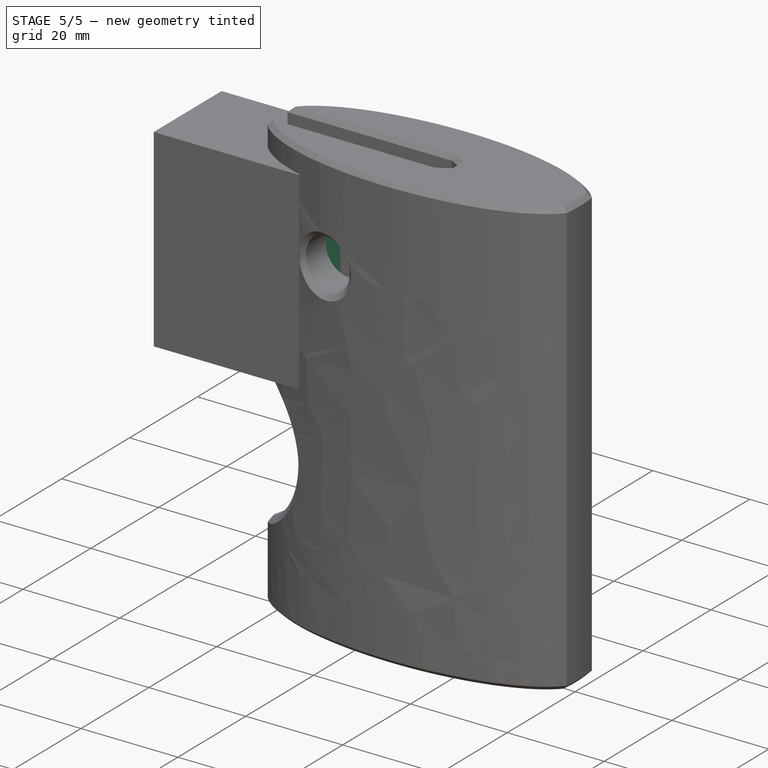
[diagram: stage 5 of 5 — iso view after this stage's code; geometry added in this stage tinted green]
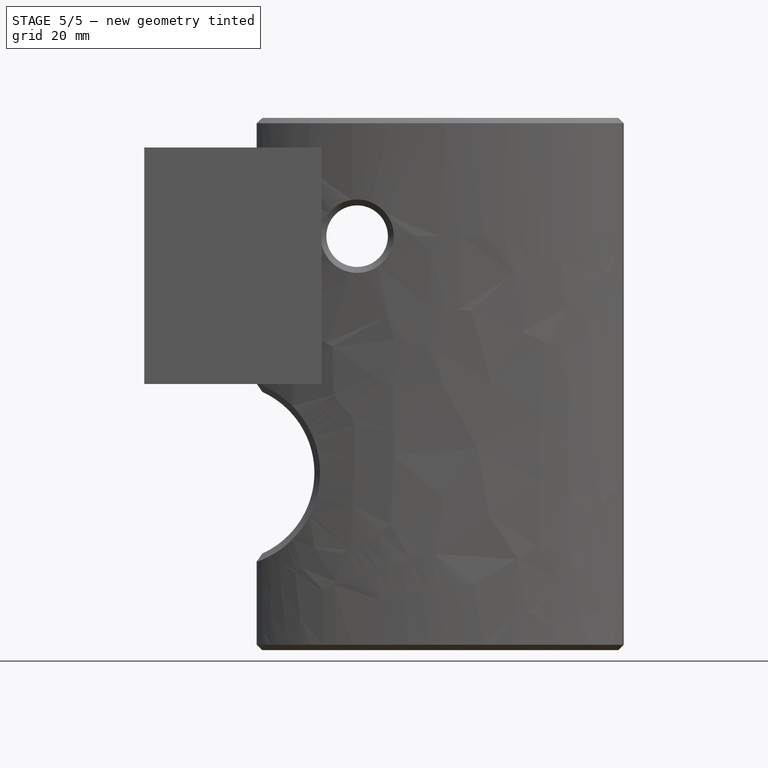
[diagram: stage 5 of 5 — front view after this stage's code; geometry added in this stage tinted green]
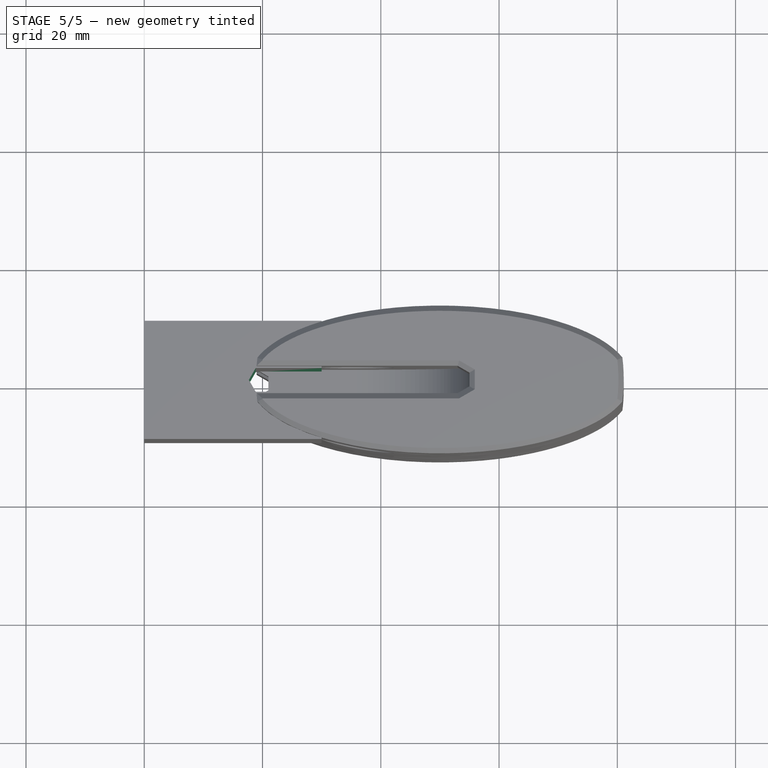
[diagram: stage 5 of 5 — top view after this stage's code; geometry added in this stage tinted green]
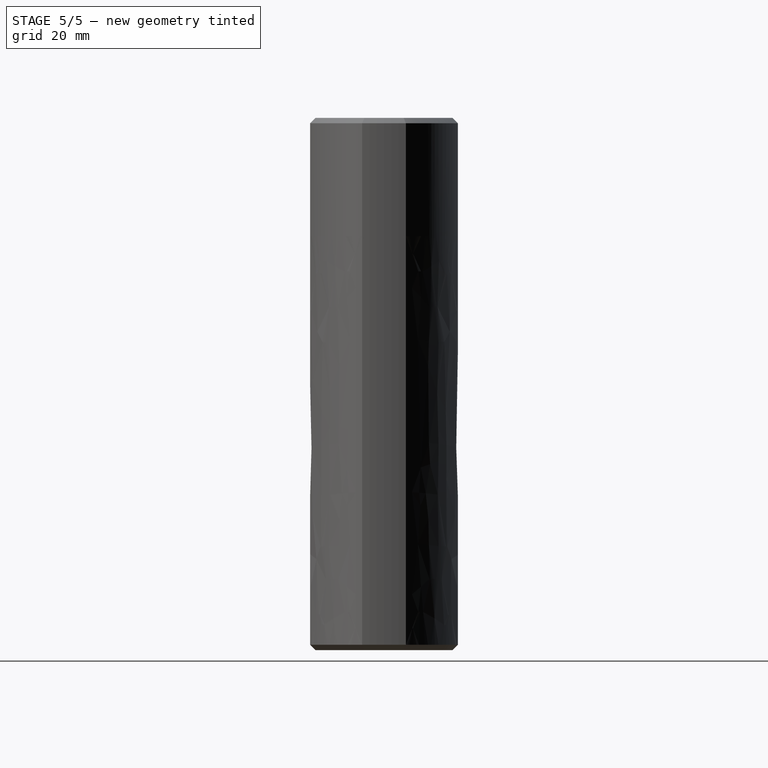
[diagram: stage 5 of 5 — right view after this stage's code; geometry added in this stage tinted green]
FEATURE [PartDesign::Pocket] Pocket
  BaseFeature = -> SubtractivePipe
  Direction = (0,0,-1)
  Length = 0
  Length2 = 5
  Profile = -> SubtractivePipe [Edge16,Edge21,Edge20,Edge19,Edge18,Edge17]
  Refine = true
  SideType = 0
  Suppressed = false
  Type = 3
  Type2 = 0
  UpToFace = -> SubtractivePipe [Face2]
FEATURE [PartDesign::Chamfer] Chamfer
  Angle = 45
  Base = -> Pocket [Edge12,Edge11]
  BaseFeature = -> Pocket
  ChamferType = 0
  FlipDirection = false
  Refine = true
  Size = 0.5
  Size2 = 1
  SupportTransform = false
  Suppressed = false
  UseAllEdges = false
FEATURE [Sketcher::SketchObject] Sketch003
  ArcFitTolerance = 1e-06
  AttachmentSupport = -> [Chamfer]
  ExternalTypes = [0]
  FullyConstrained = true
  MakeInternals = false
  MapMode = 5
  Placement = pos=(0,-3,0) rot=(1,0,0;1.5708rad)
  sketch-geometry (1):
    g0: Circle CenterX=0 CenterY=0 CenterZ=0 NormalX=0 NormalY=0 NormalZ=1 AngleXU=0 Radius=2.5
  constraints (2):
    c: Diameter(g0) = 5
    c: Coincident(g0,g-1)
FEATURE [PartDesign::Pad] Pad001
  BaseFeature = -> Chamfer
  Direction = (0,-1,2e-16)
  Length = 2
  Length2 = 10
  Profile = -> Sketch003
  ReferenceAxis = -> Sketch003 [N_Axis]
  Refine = true
  SideType = 0
  Suppressed = false
  TaperAngle = -25
  Type = 0
  Type2 = 0
FEATURE [PartDesign::Mirrored] Mirrored
  BaseFeature = -> Pad001
  MirrorPlane = -> XZ_Plane
  Originals = -> [Pad001]
  Refine = true
  Suppressed = false
  TransformMode = 0
FEATURE [Sketcher::SketchObject] Sketch005
  ArcFitTolerance = 1e-06
  AttachmentSupport = -> [Origin002]
  ExternalGeometry = -> [Binder,Pad002]
  ExternalTypes = [0,0,0]
  FullyConstrained = true
  MakeInternals = false
  MapMode = 5
  sketch-geometry (3):
    g0: LineSegment StartX=-1.1547 StartY=2 StartZ=0 EndX=10 EndY=2 EndZ=0
    g1: LineSegment StartX=-1.1547 StartY=-2 StartZ=0 EndX=10 EndY=-2 EndZ=0
    g2: LineSegment StartX=10 StartY=-2 StartZ=0 EndX=10 EndY=2 EndZ=0
  constraints (8):
    c: Coincident(g0,g-3)
    c: PointOnObject(g0,g-5)
    c: Horizontal(g0)
    c: Coincident(g1,g-4)
    c: PointOnObject(g1,g-5)
    c: Horizontal(g1)
    c: Coincident(g2,g1)
    c: Coincident(g2,g0)
FEATURE [PartDesign::Pocket] Pocket001
  BaseFeature = -> Pad002
  Direction = (0,0,-1)
  Length = 5
  Length2 = 5
  Profile = -> Sketch005
  ReferenceAxis = -> Sketch005 [N_Axis]
  Refine = true
  SideType = 2
  Suppressed = false
  Type = 1
  Type2 = 0
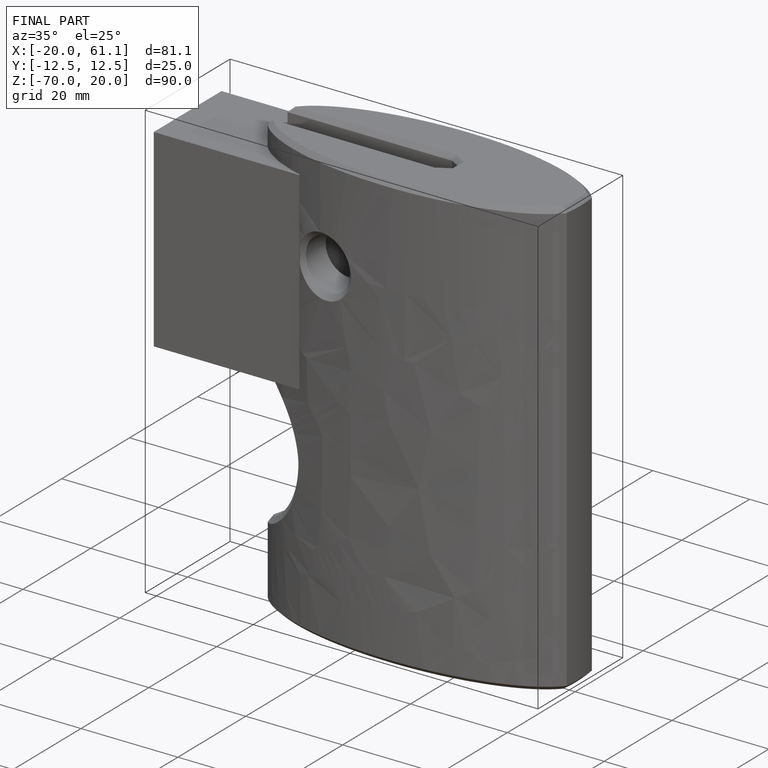
[diagram: finished part — iso view with bounding-box wireframe]
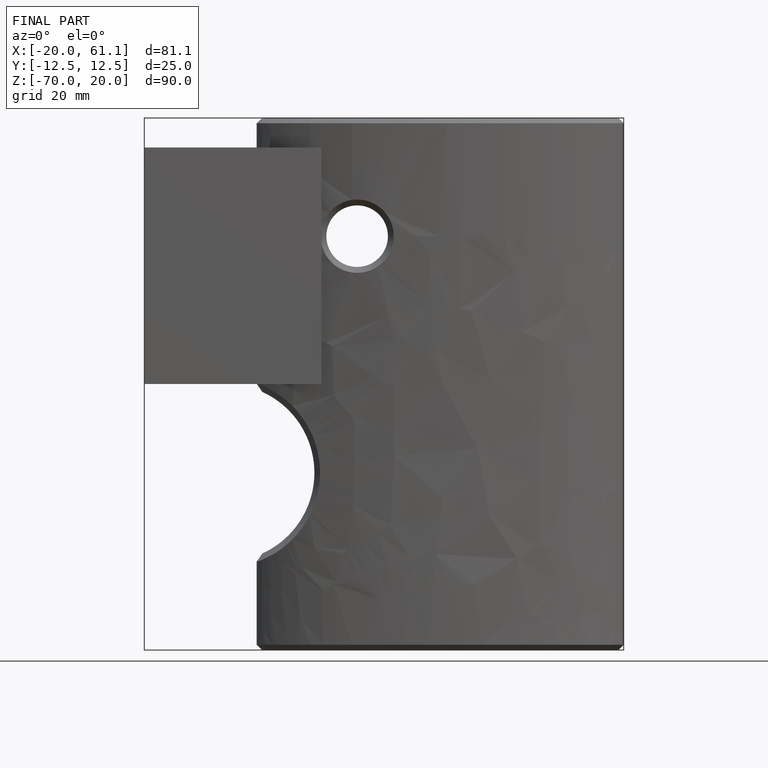
[diagram: finished part — front view with bounding-box wireframe]
